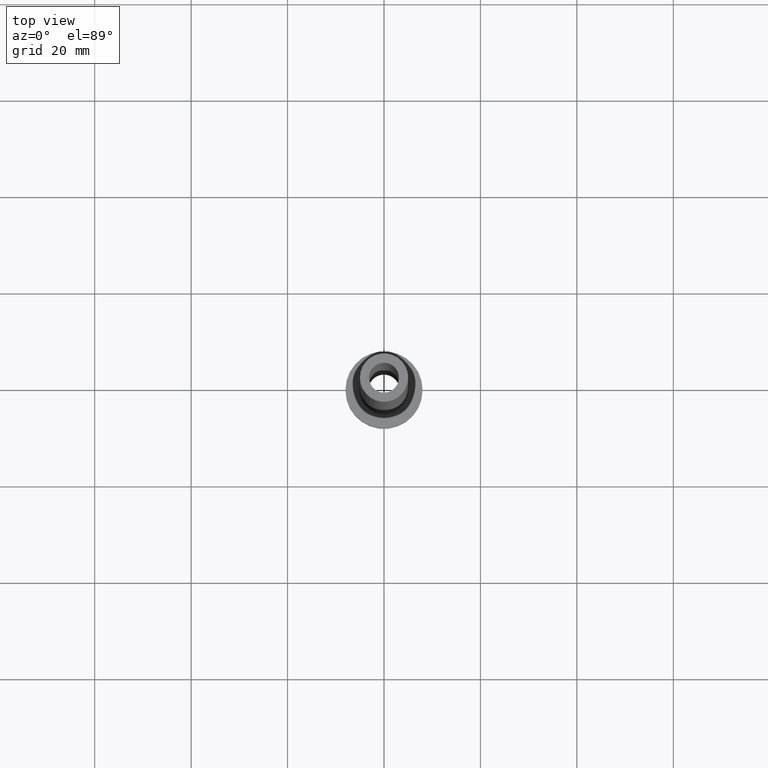
[diagram: clean part render]
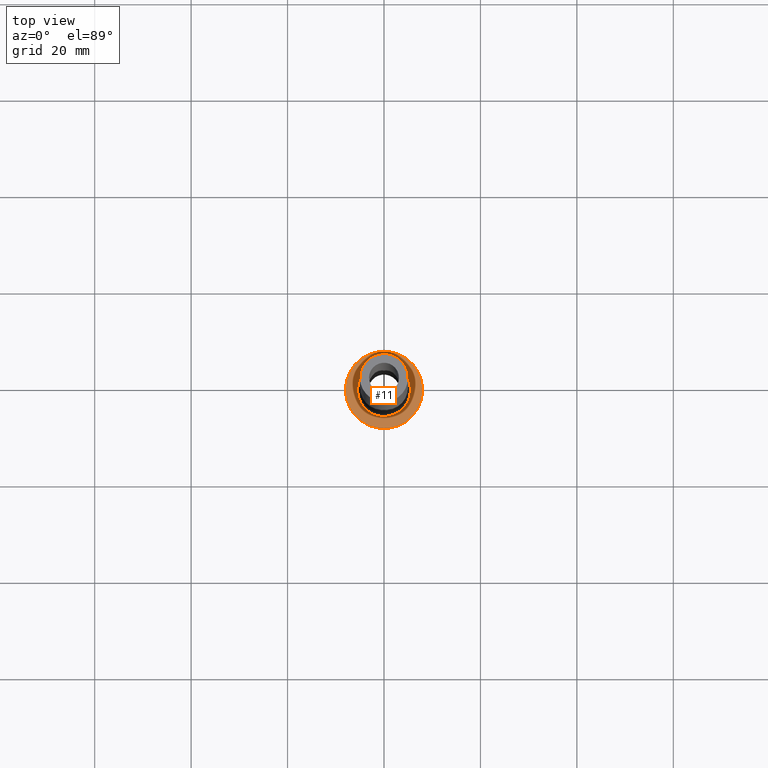
[diagram: same view with one face highlighted and labeled with its STEP entity id]
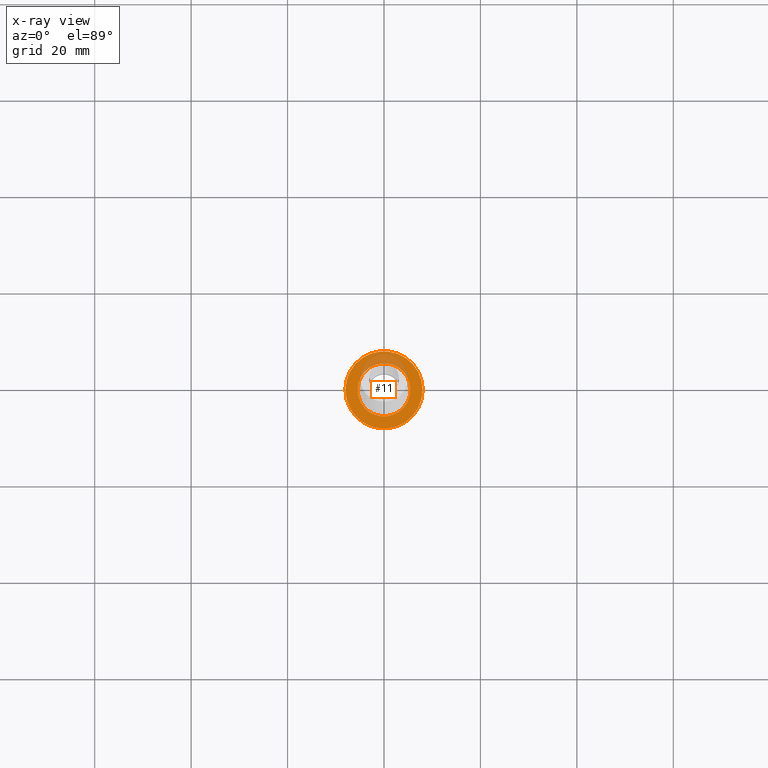
[diagram: x-ray of the same camera — body ghosted, the highlighted face saturated]
A machine part, top view. The second image highlights one B-rep face of the part: STEP entity #11.
The next image is the same camera in x-ray: the body ghosted, the highlighted face saturated — about 18% of this face is hidden behind the body in this view.
In plain terms, the highlighted planar face has unit normal (0, 0, 1).
Its self-contained STEP definition (entity closure, byte-faithful):
#9 = CIRCLE ( 'NONE', #196, 5.500000000000000000 ) ;
#11 = ADVANCED_FACE ( 'NONE', ( #56, #444 ), #168, .T. ) ;
#13 = AXIS2_PLACEMENT_3D ( 'NONE', #446, #51, #309 ) ;
#26 = VERTEX_POINT ( 'NONE', #224 ) ;
#38 = EDGE_CURVE ( 'NONE', #52, #363, #438, .T. ) ;
#51 = DIRECTION ( 'NONE',  ( 0.000000000000000000, 0.000000000000000000, 1.000000000000000000 ) ) ;
#52 = VERTEX_POINT ( 'NONE', #201 ) ;
#56 = FACE_BOUND ( 'NONE', #283, .T. ) ;
#74 = DIRECTION ( 'NONE',  ( -0.000000000000000000, -0.000000000000000000, -1.000000000000000000 ) ) ;
#99 = VERTEX_POINT ( 'NONE', #372 ) ;
#114 = CARTESIAN_POINT ( 'NONE',  ( 0.000000000000000000, 0.000000000000000000, 5.000000000000000000 ) ) ;
#119 = ORIENTED_EDGE ( 'NONE', *, *, #143, .T. ) ;
#143 = EDGE_CURVE ( 'NONE', #99, #26, #145, .T. ) ;
#145 = CIRCLE ( 'NONE', #429, 8.000000000000000000 ) ;
#147 = DIRECTION ( 'NONE',  ( 1.000000000000000000, 0.000000000000000000, 0.000000000000000000 ) ) ;
#161 = CARTESIAN_POINT ( 'NONE',  ( 0.000000000000000000, 0.000000000000000000, 5.000000000000000000 ) ) ;
#168 = PLANE ( 'NONE',  #13 ) ;
#172 = CARTESIAN_POINT ( 'NONE',  ( -5.500000000000000000, 6.735557395310442023E-16, 5.000000000000002665 ) ) ;
#176 = AXIS2_PLACEMENT_3D ( 'NONE', #324, #455, #147 ) ;
#196 = AXIS2_PLACEMENT_3D ( 'NONE', #114, #74, #358 ) ;
#201 = CARTESIAN_POINT ( 'NONE',  ( 5.500000000000000000, 0.000000000000000000, 5.000000000000002665 ) ) ;
#224 = CARTESIAN_POINT ( 'NONE',  ( -8.000000000000000000, 0.000000000000000000, 5.000000000000000000 ) ) ;
#241 = ORIENTED_EDGE ( 'NONE', *, *, #251, .T. ) ;
#243 = DIRECTION ( 'NONE',  ( 0.000000000000000000, 0.000000000000000000, 1.000000000000000000 ) ) ;
#251 = EDGE_CURVE ( 'NONE', #363, #52, #9, .T. ) ;
#270 = EDGE_LOOP ( 'NONE', ( #400, #119 ) ) ;
#278 = EDGE_CURVE ( 'NONE', #26, #99, #449, .T. ) ;
#279 = AXIS2_PLACEMENT_3D ( 'NONE', #161, #313, #439 ) ;
#283 = EDGE_LOOP ( 'NONE', ( #312, #241 ) ) ;
#309 = DIRECTION ( 'NONE',  ( 1.000000000000000000, 0.000000000000000000, -0.000000000000000000 ) ) ;
#312 = ORIENTED_EDGE ( 'NONE', *, *, #38, .T. ) ;
#313 = DIRECTION ( 'NONE',  ( -0.000000000000000000, -0.000000000000000000, -1.000000000000000000 ) ) ;
#324 = CARTESIAN_POINT ( 'NONE',  ( 0.000000000000000000, 0.000000000000000000, 5.000000000000000000 ) ) ;
#358 = DIRECTION ( 'NONE',  ( 1.000000000000000000, 0.000000000000000000, 0.000000000000000000 ) ) ;
#363 = VERTEX_POINT ( 'NONE', #172 ) ;
#372 = CARTESIAN_POINT ( 'NONE',  ( 8.000000000000000000, 9.797174393178825657E-16, 5.000000000000000000 ) ) ;
#383 = DIRECTION ( 'NONE',  ( 1.000000000000000000, 0.000000000000000000, 0.000000000000000000 ) ) ;
#400 = ORIENTED_EDGE ( 'NONE', *, *, #278, .T. ) ;
#423 = CARTESIAN_POINT ( 'NONE',  ( 0.000000000000000000, 0.000000000000000000, 5.000000000000000000 ) ) ;
#429 = AXIS2_PLACEMENT_3D ( 'NONE', #423, #243, #383 ) ;
#438 = CIRCLE ( 'NONE', #279, 5.500000000000000000 ) ;
#439 = DIRECTION ( 'NONE',  ( 1.000000000000000000, 0.000000000000000000, 0.000000000000000000 ) ) ;
#444 = FACE_OUTER_BOUND ( 'NONE', #270, .T. ) ;
#446 = CARTESIAN_POINT ( 'NONE',  ( 0.000000000000000000, 0.000000000000000000, 5.000000000000000000 ) ) ;
#449 = CIRCLE ( 'NONE', #176, 8.000000000000000000 ) ;
#455 = DIRECTION ( 'NONE',  ( 0.000000000000000000, 0.000000000000000000, 1.000000000000000000 ) ) ;